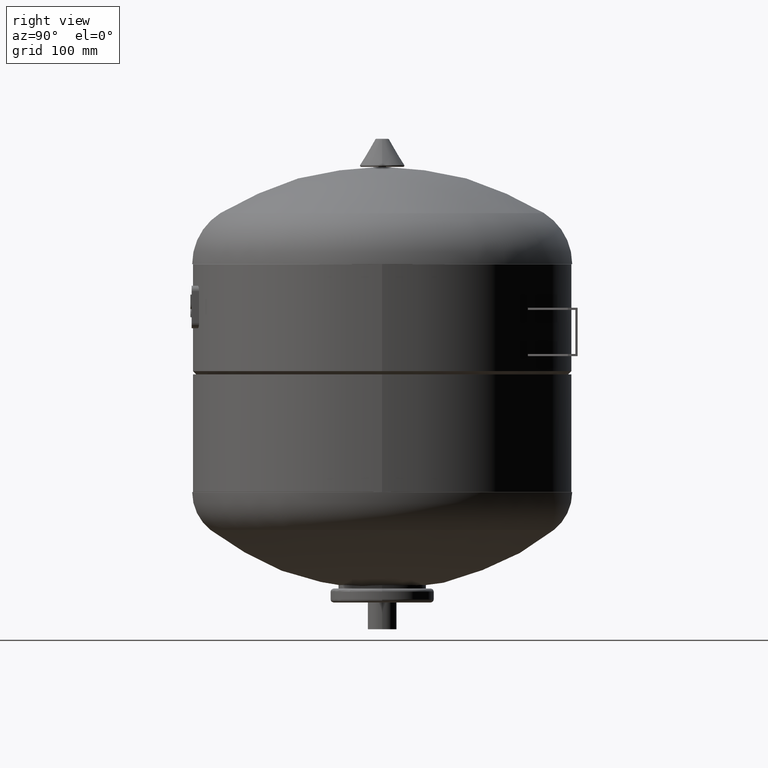
[diagram: clean part render]
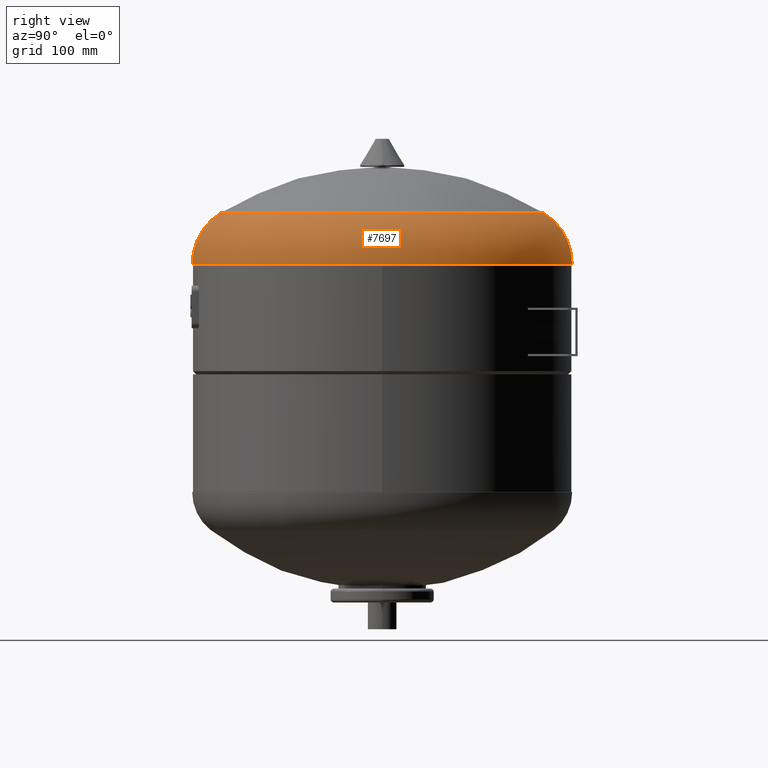
[diagram: same view with one face highlighted and labeled with its STEP entity id]
A machine part, right view. The second image highlights one B-rep face of the part: STEP entity #7697.
In plain terms, the highlighted toroidal blend (fillet) surface has major radius 121 mm and minor (blend) radius 56 mm.
Its self-contained STEP definition (entity closure, byte-faithful):
#7583=CARTESIAN_POINT('',(177.0,-2.175004E-014,340.24336987332833));
#7584=VERTEX_POINT('',#7583);
#7591=CARTESIAN_POINT('',(-2.348140E-014,-177.0,340.24336987332828));
#7592=VERTEX_POINT('',#7591);
#7593=CARTESIAN_POINT('',(-4.829614E-018,-7.451053E-017,340.24336987332833));
#7594=DIRECTION('',(0.0,0.0,-1.0));
#7595=DIRECTION('',(-1.0,0.0,0.0));
#7596=AXIS2_PLACEMENT_3D('',#7593,#7594,#7595);
#7597=CIRCLE('',#7596,177.0);
#7598=EDGE_CURVE('',#7584,#7592,#7597,.T.);
#7615=CARTESIAN_POINT('',(-1.805872E-015,177.0,340.24336987332839));
#7616=VERTEX_POINT('',#7615);
#7617=CARTESIAN_POINT('',(-2.747769E-015,150.71929824561403,387.70665370186521));
#7618=VERTEX_POINT('',#7617);
#7619=CARTESIAN_POINT('',(-1.805872E-015,121.00000000000003,340.24336987332839));
#7620=DIRECTION('',(1.0,0.0,0.0));
#7621=DIRECTION('',(0.0,1.0,0.0));
#7622=AXIS2_PLACEMENT_3D('',#7619,#7620,#7621);
#7623=CIRCLE('',#7622,56.000000000000007);
#7624=EDGE_CURVE('',#7616,#7618,#7623,.T.);
#7634=CARTESIAN_POINT('',(-2.120495E-014,-150.71929824561408,387.70665370186509));
#7635=VERTEX_POINT('',#7634);
#7636=CARTESIAN_POINT('',(-1.662361E-014,-121.00000000000003,340.24336987332828));
#7637=DIRECTION('',(-1.0,0.0,0.0));
#7638=DIRECTION('',(0.0,-1.0,0.0));
#7639=AXIS2_PLACEMENT_3D('',#7636,#7637,#7638);
#7640=CIRCLE('',#7639,56.000000000000007);
#7641=EDGE_CURVE('',#7592,#7635,#7640,.T.);
#7669=CARTESIAN_POINT('',(-9.467265E-016,-1.460595E-014,387.70665370186515));
#7670=DIRECTION('',(0.0,0.0,-1.0));
#7671=DIRECTION('',(-1.0,0.0,0.0));
#7672=AXIS2_PLACEMENT_3D('',#7669,#7670,#7671);
#7673=CIRCLE('',#7672,150.71929824561406);
#7674=EDGE_CURVE('',#7618,#7635,#7673,.T.);
#7679=CARTESIAN_POINT('',(-1.805872E-015,-7.451053E-017,340.24336987332833));
#7680=DIRECTION('',(1.984475E-017,3.061617E-016,-1.0));
#7681=DIRECTION('',(0.0,1.0,0.0));
#7682=AXIS2_PLACEMENT_3D('',#7679,#7680,#7681);
#7683=TOROIDAL_SURFACE('',#7682,121.00000000000003,56.000000000000007);
#7684=ORIENTED_EDGE('',*,*,#7624,.T.);
#7685=ORIENTED_EDGE('',*,*,#7674,.T.);
#7686=ORIENTED_EDGE('',*,*,#7641,.F.);
#7687=ORIENTED_EDGE('',*,*,#7598,.F.);
#7688=CARTESIAN_POINT('',(-4.829614E-018,-7.451053E-017,340.24336987332833));
#7689=DIRECTION('',(0.0,0.0,-1.0));
#7690=DIRECTION('',(-1.0,0.0,0.0));
#7691=AXIS2_PLACEMENT_3D('',#7688,#7689,#7690);
#7692=CIRCLE('',#7691,177.0);
#7693=EDGE_CURVE('',#7616,#7584,#7692,.T.);
#7694=ORIENTED_EDGE('',*,*,#7693,.F.);
#7695=EDGE_LOOP('',(#7684,#7685,#7686,#7687,#7694));
#7696=FACE_OUTER_BOUND('',#7695,.T.);
#7697=ADVANCED_FACE('',(#7696),#7683,.T.);